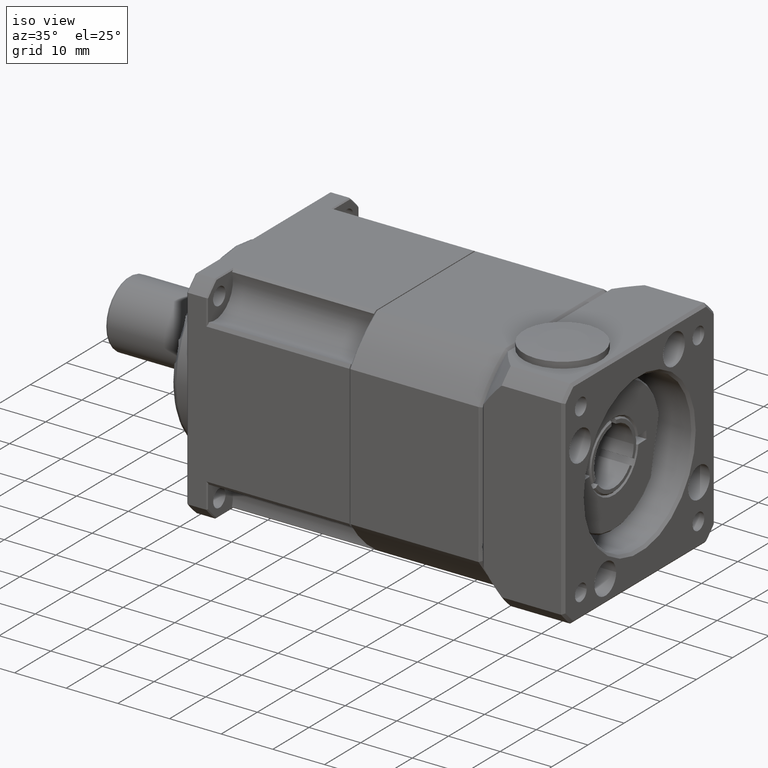
[diagram: clean part render]
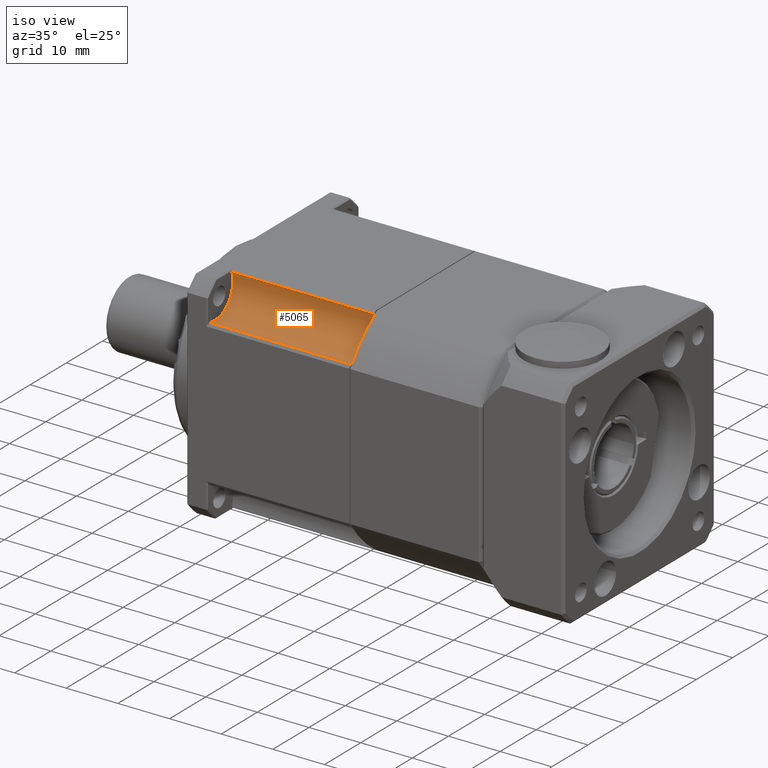
[diagram: same view with one face highlighted and labeled with its STEP entity id]
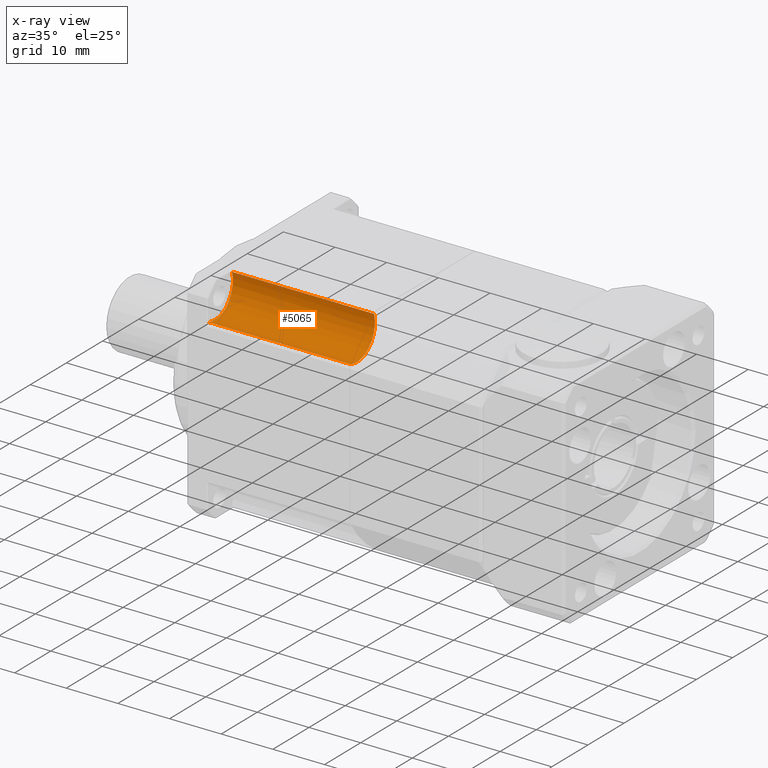
[diagram: x-ray of the same camera — body ghosted, the highlighted face saturated]
A machine part, iso view. The second image highlights one B-rep face of the part: STEP entity #5065.
The next image is the same camera in x-ray: the body ghosted, the highlighted face saturated — about 0% of this face is hidden behind the body in this view.
In plain terms, the highlighted cylindrical surface (edge-blend (fillet) strip) has radius 5 mm, axis along (-1, 0, 0).
Its self-contained STEP definition (entity closure, byte-faithful):
#425=LINE('',#8878,#659);
#426=LINE('',#8879,#660);
#659=VECTOR('',#7115,27.5);
#660=VECTOR('',#7116,27.5);
#1278=FACE_OUTER_BOUND('',#1732,.T.);
#1732=EDGE_LOOP('',(#4316,#4317,#4318,#4319,#4320,#4321));
#1957=CIRCLE('',#5449,5.);
#1997=CIRCLE('',#5538,5.);
#2008=CIRCLE('',#5551,5.);
#2043=CIRCLE('',#5623,5.);
#2344=VERTEX_POINT('',#8284);
#2345=VERTEX_POINT('',#8285);
#2392=VERTEX_POINT('',#8506);
#2403=VERTEX_POINT('',#8532);
#2453=VERTEX_POINT('',#8690);
#2454=VERTEX_POINT('',#8692);
#2897=EDGE_CURVE('',#2344,#2345,#1957,.T.);
#2978=EDGE_CURVE('',#2345,#2392,#1997,.T.);
#2992=EDGE_CURVE('',#2403,#2344,#2008,.T.);
#3051=EDGE_CURVE('',#2454,#2453,#2043,.T.);
#3124=EDGE_CURVE('',#2392,#2453,#425,.T.);
#3125=EDGE_CURVE('',#2454,#2403,#426,.T.);
#4316=ORIENTED_EDGE('',*,*,#3124,.F.);
#4317=ORIENTED_EDGE('',*,*,#2978,.F.);
#4318=ORIENTED_EDGE('',*,*,#2897,.F.);
#4319=ORIENTED_EDGE('',*,*,#2992,.F.);
#4320=ORIENTED_EDGE('',*,*,#3125,.F.);
#4321=ORIENTED_EDGE('',*,*,#3051,.T.);
#4555=CYLINDRICAL_SURFACE('',#5695,5.);
#5065=ADVANCED_FACE('',(#1278),#4555,.F.);
#5449=AXIS2_PLACEMENT_3D('',#8286,#6554,#6555);
#5538=AXIS2_PLACEMENT_3D('',#8507,#6753,#6754);
#5551=AXIS2_PLACEMENT_3D('',#8534,#6782,#6783);
#5623=AXIS2_PLACEMENT_3D('',#8693,#6938,#6939);
#5695=AXIS2_PLACEMENT_3D('',#8877,#7113,#7114);
#6554=DIRECTION('center_axis',(-1.,4.44089209850051E-16,1.50008167835232E-15));
#6555=DIRECTION('ref_axis',(1.50008167835233E-15,9.43516098583778E-15,1.));
#6753=DIRECTION('center_axis',(-1.,4.44089209850051E-16,1.50008167835232E-15));
#6754=DIRECTION('ref_axis',(1.50008167835233E-15,9.43516098583778E-15,1.));
#6782=DIRECTION('center_axis',(-1.,4.44089209850051E-16,1.50008167835232E-15));
#6783=DIRECTION('ref_axis',(1.50008167835233E-15,9.43516098583778E-15,1.));
#6938=DIRECTION('center_axis',(-1.,4.44089209850051E-16,1.50008167835232E-15));
#6939=DIRECTION('ref_axis',(1.50008167835233E-15,9.43516098583778E-15,1.));
#7113=DIRECTION('center_axis',(-1.,4.44089209850051E-16,1.50008167835232E-15));
#7114=DIRECTION('ref_axis',(1.50008167835233E-15,9.43516098583778E-15,1.));
#7115=DIRECTION('',(-1.,4.44089209850051E-16,1.50008167835232E-15));
#7116=DIRECTION('',(1.,-4.44089209850051E-16,-1.50008167835232E-15));
#8284=CARTESIAN_POINT('',(-7.28400498561368,-53.0014463200837,-6.96955269598275));
#8285=CARTESIAN_POINT('',(-7.28400498561369,-59.2456877300627,-13.2137941059615));
#8286=CARTESIAN_POINT('Origin',(-7.28400498561357,-57.7825915286524,-8.43264889739291));
#8506=CARTESIAN_POINT('',(-7.28400498561358,-59.4437967218441,-13.1486214700563));
#8507=CARTESIAN_POINT('Origin',(-7.28400498561357,-57.7825915286524,-8.43264889739291));
#8532=CARTESIAN_POINT('',(-7.28400498561357,-53.066618955989,-6.77144370420137));
#8534=CARTESIAN_POINT('Origin',(-7.28400498561357,-57.7825915286524,-8.43264889739291));
#8690=CARTESIAN_POINT('',(-34.7840049856136,-59.443796721844,-13.1486214700562));
#8692=CARTESIAN_POINT('',(-34.7840049856136,-53.066618955989,-6.77144370420133));
#8693=CARTESIAN_POINT('Origin',(-34.7840049856136,-57.7825915286524,-8.43264889739287));
#8877=CARTESIAN_POINT('Origin',(-7.28400498561357,-57.7825915286524,-8.43264889739291));
#8878=CARTESIAN_POINT('',(-7.28400498561358,-59.4437967218441,-13.1486214700563));
#8879=CARTESIAN_POINT('',(-7.28400498561357,-53.066618955989,-6.77144370420137));